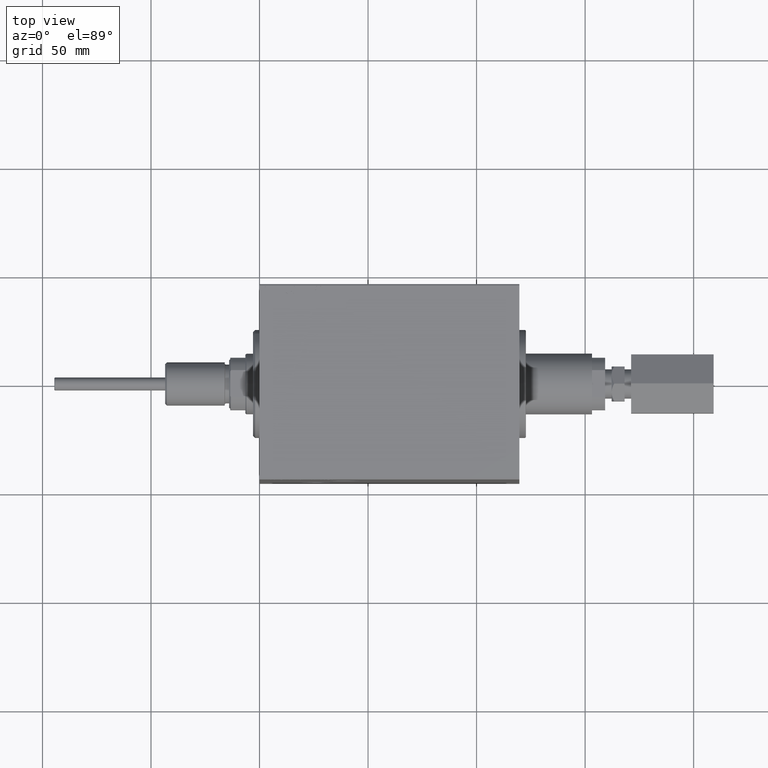
[diagram: clean part render]
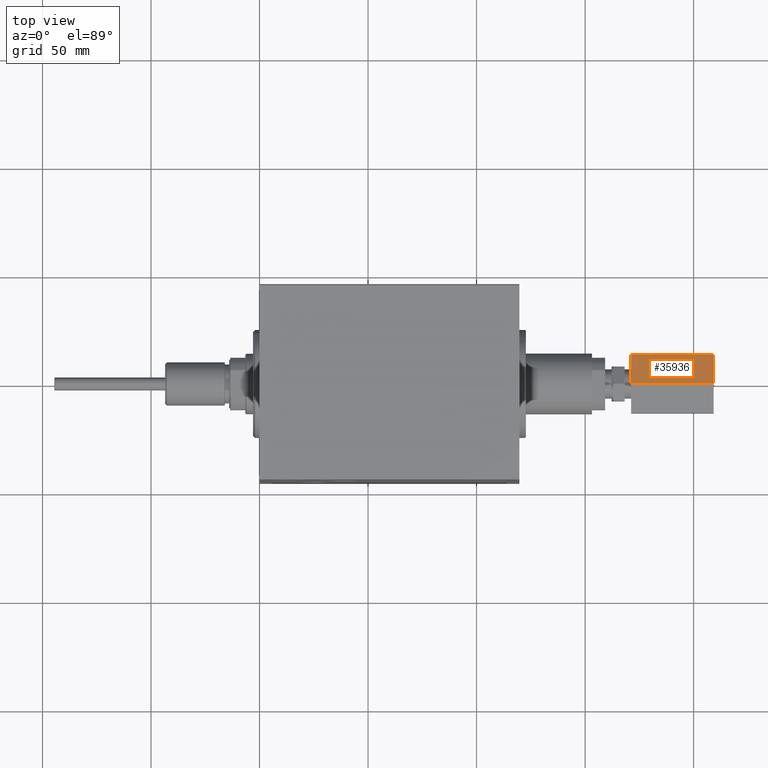
[diagram: same view with one face highlighted and labeled with its STEP entity id]
A machine part, top view. The second image highlights one B-rep face of the part: STEP entity #35936.
In plain terms, the highlighted planar face has unit normal (-0, -0.5, -0.866).
Its self-contained STEP definition (entity closure, byte-faithful):
#1768 = LINE ( 'NONE', #38224, #8613 ) ;
#2771 = ORIENTED_EDGE ( 'NONE', *, *, #41696, .T. ) ;
#3378 = EDGE_CURVE ( 'NONE', #33495, #27204, #31561, .T. ) ;
#4352 = ORIENTED_EDGE ( 'NONE', *, *, #3378, .F. ) ;
#5122 = CARTESIAN_POINT ( 'NONE',  ( 52.50000000000000711, -7.794228634059949812, 13.49999999999999822 ) ) ;
#6860 = VERTEX_POINT ( 'NONE', #25798 ) ;
#7031 = CARTESIAN_POINT ( 'NONE',  ( 90.50000000000000000, -15.58845726811989607, -5.983477626642369342E-15 ) ) ;
#8079 = DIRECTION ( 'NONE',  ( 0.000000000000000000, 0.4999999999999998335, 0.8660254037844387076 ) ) ;
#8094 = EDGE_LOOP ( 'NONE', ( #2771, #4352, #12531, #29435 ) ) ;
#8613 = VECTOR ( 'NONE', #31063, 1000.000000000000227 ) ;
#8834 = LINE ( 'NONE', #44570, #41450 ) ;
#10064 = VERTEX_POINT ( 'NONE', #41708 ) ;
#12003 = VECTOR ( 'NONE', #27748, 1000.000000000000000 ) ;
#12531 = ORIENTED_EDGE ( 'NONE', *, *, #46156, .F. ) ;
#15210 = FACE_OUTER_BOUND ( 'NONE', #8094, .T. ) ;
#16723 = AXIS2_PLACEMENT_3D ( 'NONE', #37135, #18780, #8079 ) ;
#18780 = DIRECTION ( 'NONE',  ( 0.000000000000000000, 0.8660254037844387076, -0.4999999999999998335 ) ) ;
#20161 = CARTESIAN_POINT ( 'NONE',  ( 52.50000000000000711, -15.58845726811989607, -5.983477626642369342E-15 ) ) ;
#20354 = LINE ( 'NONE', #5122, #23783 ) ;
#22539 = EDGE_CURVE ( 'NONE', #6860, #10064, #8834, .T. ) ;
#23783 = VECTOR ( 'NONE', #34189, 1000.000000000000227 ) ;
#25798 = CARTESIAN_POINT ( 'NONE',  ( 90.50000000000000000, -7.794228634059949812, 13.49999999999999822 ) ) ;
#26160 = PLANE ( 'NONE',  #16723 ) ;
#27204 = VERTEX_POINT ( 'NONE', #20161 ) ;
#27748 = DIRECTION ( 'NONE',  ( -1.000000000000000000, -0.000000000000000000, -0.000000000000000000 ) ) ;
#29435 = ORIENTED_EDGE ( 'NONE', *, *, #22539, .T. ) ;
#31063 = DIRECTION ( 'NONE',  ( 0.000000000000000000, -0.4999999999999997780, -0.8660254037844387076 ) ) ;
#31561 = LINE ( 'NONE', #7031, #12003 ) ;
#32223 = CARTESIAN_POINT ( 'NONE',  ( 90.50000000000000000, -15.58845726811989607, -5.983477626642369342E-15 ) ) ;
#33495 = VERTEX_POINT ( 'NONE', #32223 ) ;
#34189 = DIRECTION ( 'NONE',  ( 0.000000000000000000, -0.4999999999999997780, -0.8660254037844387076 ) ) ;
#35936 = ADVANCED_FACE ( 'NONE', ( #15210 ), #26160, .F. ) ;
#37135 = CARTESIAN_POINT ( 'NONE',  ( 90.50000000000000000, -7.794228634059949812, 13.49999999999999822 ) ) ;
#38224 = CARTESIAN_POINT ( 'NONE',  ( 90.50000000000000000, -7.794228634059949812, 13.49999999999999822 ) ) ;
#38371 = DIRECTION ( 'NONE',  ( -1.000000000000000000, -0.000000000000000000, -0.000000000000000000 ) ) ;
#41450 = VECTOR ( 'NONE', #38371, 1000.000000000000000 ) ;
#41696 = EDGE_CURVE ( 'NONE', #10064, #27204, #20354, .T. ) ;
#41708 = CARTESIAN_POINT ( 'NONE',  ( 52.50000000000000711, -7.794228634059949812, 13.49999999999999822 ) ) ;
#44570 = CARTESIAN_POINT ( 'NONE',  ( 90.50000000000000000, -7.794228634059949812, 13.49999999999999822 ) ) ;
#46156 = EDGE_CURVE ( 'NONE', #6860, #33495, #1768, .T. ) ;